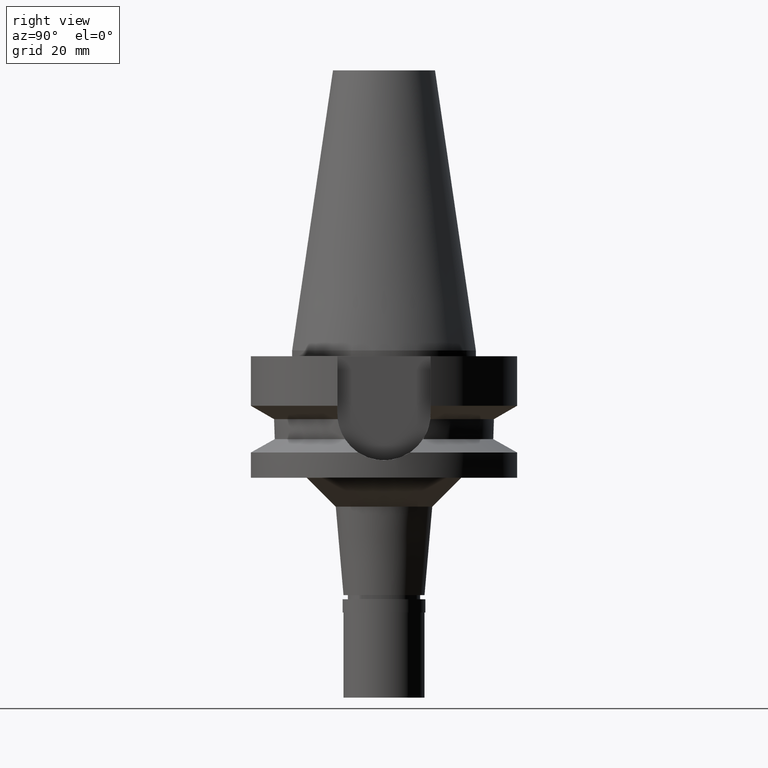
[diagram: clean part render]
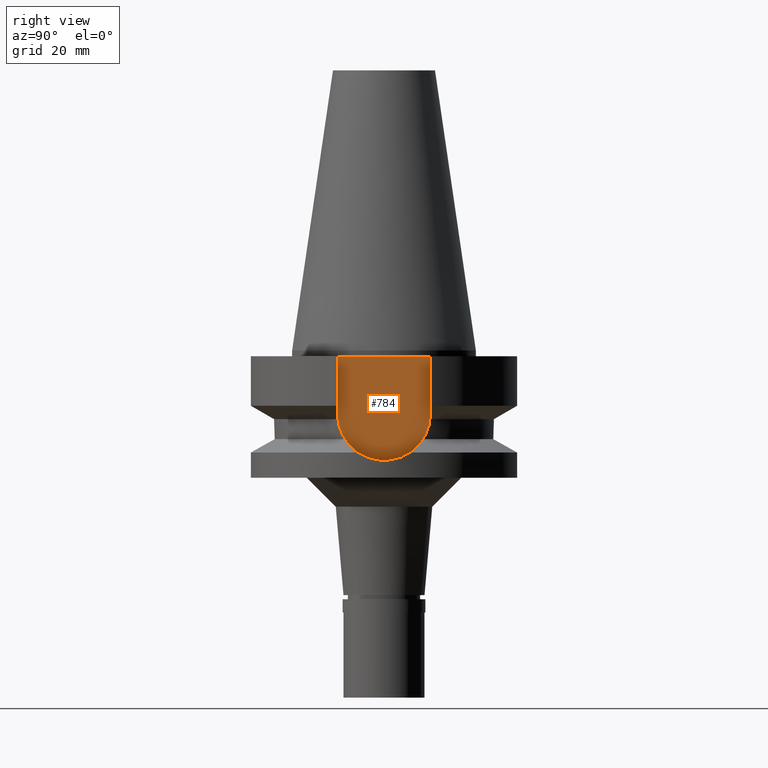
[diagram: same view with one face highlighted and labeled with its STEP entity id]
A machine part, right view. The second image highlights one B-rep face of the part: STEP entity #784.
In plain terms, the highlighted planar face has unit normal (1, 0, 0).
Its self-contained STEP definition (entity closure, byte-faithful):
#48 = EDGE_LOOP ( 'NONE', ( #2609, #1109, #76, #212 ) ) ;
#51 = EDGE_CURVE ( 'NONE', #1358, #2463, #2301, .T. ) ;
#76 = ORIENTED_EDGE ( 'NONE', *, *, #2761, .F. ) ;
#120 = VECTOR ( 'NONE', #339, 1000.000000000000000 ) ;
#147 = CIRCLE ( 'NONE', #1110, 8.050000000000000711 ) ;
#200 = DIRECTION ( 'NONE',  ( 0.0000000000000000000, -1.000000000000000000, 0.0000000000000000000 ) ) ;
#212 = ORIENTED_EDGE ( 'NONE', *, *, #2965, .T. ) ;
#308 = AXIS2_PLACEMENT_3D ( 'NONE', #644, #1787, #2219 ) ;
#339 = DIRECTION ( 'NONE',  ( 0.0000000000000000000, 0.0000000000000000000, -1.000000000000000000 ) ) ;
#444 = CARTESIAN_POINT ( 'NONE',  ( 16.29999999999999716, -8.050000000000000711, -10.94999999999999929 ) ) ;
#491 = VERTEX_POINT ( 'NONE', #2614 ) ;
#562 = CARTESIAN_POINT ( 'NONE',  ( 16.29999999999999716, 8.050000000000000711, -1.000000000000000000 ) ) ;
#590 = VERTEX_POINT ( 'NONE', #962 ) ;
#644 = CARTESIAN_POINT ( 'NONE',  ( 16.29999999999999716, 0.0000000000000000000, 0.0000000000000000000 ) ) ;
#784 = ADVANCED_FACE ( 'NONE', ( #2248 ), #823, .T. ) ;
#823 = PLANE ( 'NONE',  #308 ) ;
#872 = CARTESIAN_POINT ( 'NONE',  ( 16.29999999999999716, -8.050000000000000711, -10.94999999999999929 ) ) ;
#962 = CARTESIAN_POINT ( 'NONE',  ( 16.29999999999999716, 8.050000000000000711, -10.94999999999999929 ) ) ;
#1066 = CARTESIAN_POINT ( 'NONE',  ( 16.29999999999999716, -8.050000000000000711, -1.000000000000000000 ) ) ;
#1109 = ORIENTED_EDGE ( 'NONE', *, *, #1344, .F. ) ;
#1110 = AXIS2_PLACEMENT_3D ( 'NONE', #1840, #2535, #2742 ) ;
#1344 = EDGE_CURVE ( 'NONE', #590, #1358, #147, .T. ) ;
#1358 = VERTEX_POINT ( 'NONE', #872 ) ;
#1673 = VECTOR ( 'NONE', #200, 1000.000000000000000 ) ;
#1787 = DIRECTION ( 'NONE',  ( 1.000000000000000000, 0.0000000000000000000, 0.0000000000000000000 ) ) ;
#1840 = CARTESIAN_POINT ( 'NONE',  ( 16.29999999999999716, 0.0000000000000000000, -10.94999999999999929 ) ) ;
#2219 = DIRECTION ( 'NONE',  ( 0.0000000000000000000, 1.000000000000000000, 0.0000000000000000000 ) ) ;
#2248 = FACE_OUTER_BOUND ( 'NONE', #48, .T. ) ;
#2301 = LINE ( 'NONE', #444, #2540 ) ;
#2403 = LINE ( 'NONE', #562, #120 ) ;
#2463 = VERTEX_POINT ( 'NONE', #1066 ) ;
#2535 = DIRECTION ( 'NONE',  ( -1.000000000000000000, 0.0000000000000000000, 0.0000000000000000000 ) ) ;
#2540 = VECTOR ( 'NONE', #2863, 1000.000000000000000 ) ;
#2551 = CARTESIAN_POINT ( 'NONE',  ( 16.29999999999999716, 8.050000000000000711, -1.000000000000000000 ) ) ;
#2609 = ORIENTED_EDGE ( 'NONE', *, *, #51, .F. ) ;
#2614 = CARTESIAN_POINT ( 'NONE',  ( 16.29999999999999716, 8.050000000000000711, -1.000000000000000000 ) ) ;
#2742 = DIRECTION ( 'NONE',  ( 0.0000000000000000000, 0.0000000000000000000, -1.000000000000000000 ) ) ;
#2759 = LINE ( 'NONE', #2551, #1673 ) ;
#2761 = EDGE_CURVE ( 'NONE', #491, #590, #2403, .T. ) ;
#2863 = DIRECTION ( 'NONE',  ( 0.0000000000000000000, 0.0000000000000000000, 1.000000000000000000 ) ) ;
#2965 = EDGE_CURVE ( 'NONE', #491, #2463, #2759, .T. ) ;